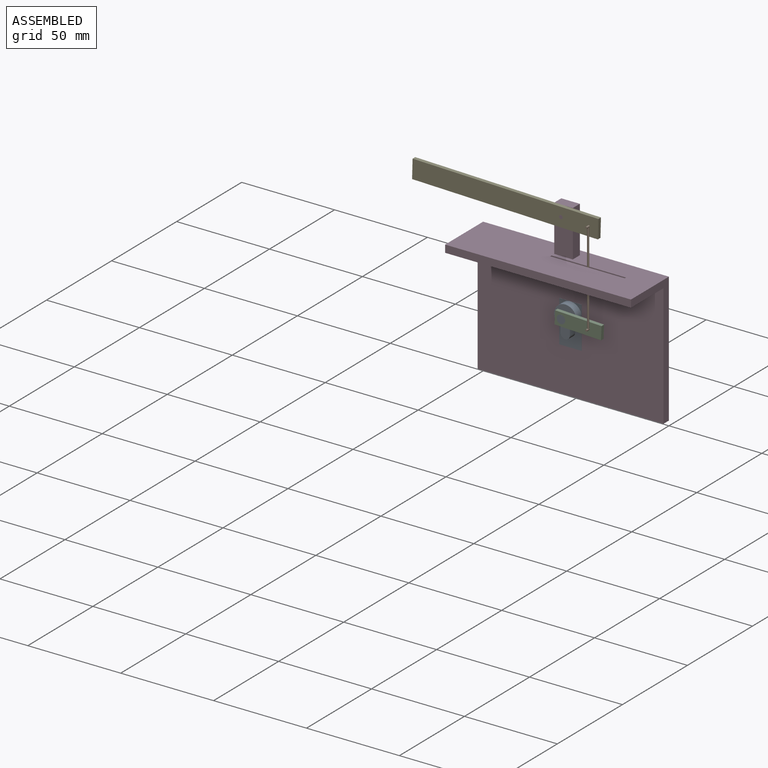
[diagram: assembled view]
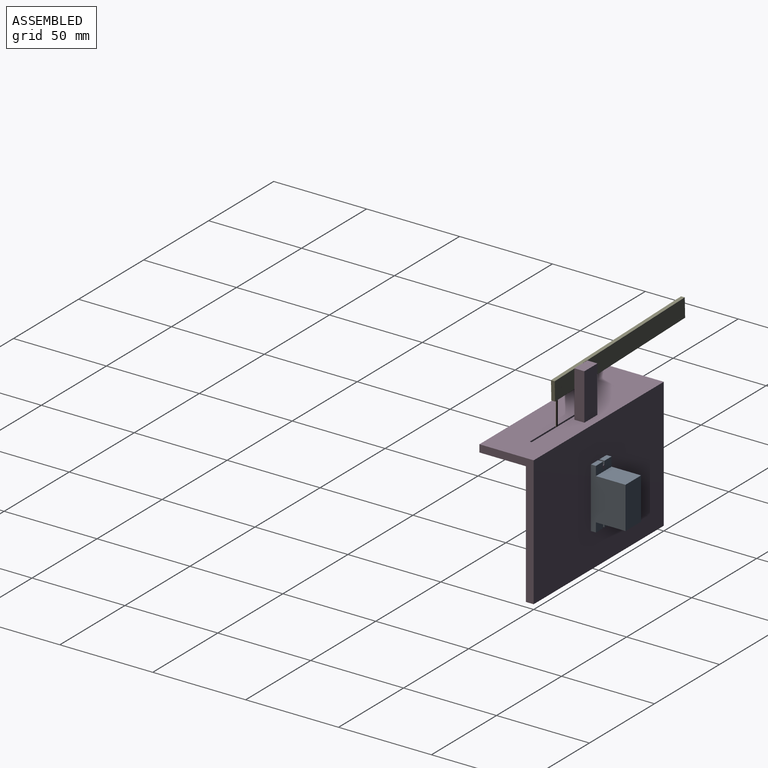
[diagram: assembled view, second angle]
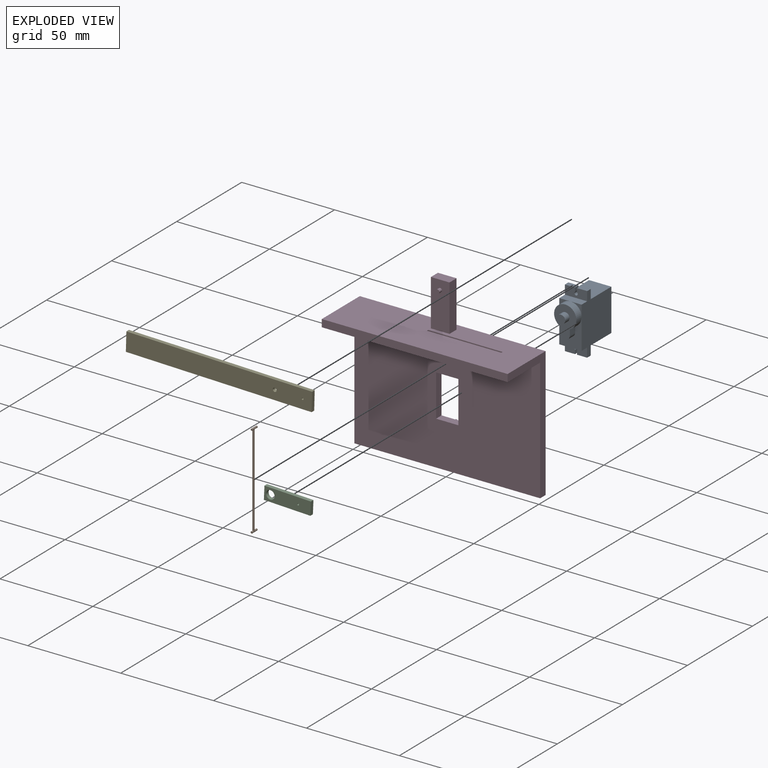
[diagram: exploded view]
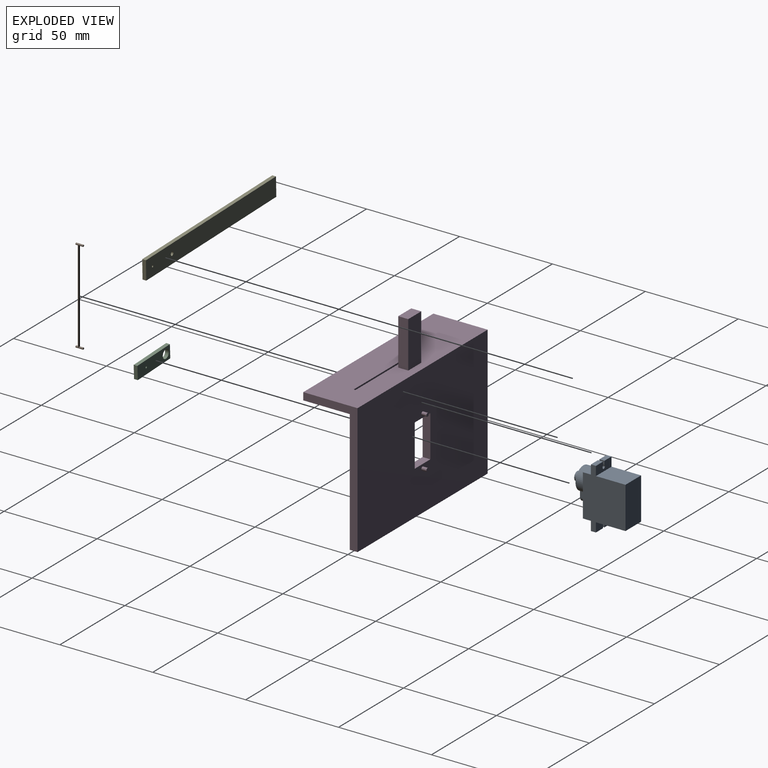
[diagram: exploded view, second angle]
ASSEMBLY  parts=5 mates=5
PART A: 31 faces, bbox 12x30.2x32.4 mm
  f0: plane 16.5x12mm, normal (0,-1,0), area 118.2mm2, adj f8,f9,f10,f24,f25,f26,f27
  f1: plane 6x6mm, normal (0,-1,0), area 7.7mm2, adj f10,f11,f25
  f2: plane 5.45x2.7mm, normal (0,0,-1), area 14.7mm2, adj f3,f4,f10,f23
  f3: plane 12x4.95mm, normal (0,1,0), area 54.7mm2, adj f2,f6,f8,f10,f17,f21,f22,f23
  f4: plane 12x4.95mm, normal (0,-1,0), area 54.7mm2, adj f2,f8,f9,f10,f17,f21,f22,f23
  f5: plane 5.45x2.7mm, normal (0,0,1), area 14.7mm2, adj f10,f15,f16,f18
  f6: plane 15.9x12mm, normal (0,0,-1), area 190.8mm2, adj f3,f8,f10,f12
  f7: plane 15.9x12mm, normal (0,0,1), area 190.8mm2, adj f8,f10,f12,f16
  f8: plane 32.4x22.9mm, normal (-1,0,0), area 542mm2, adj f0,f3,f4,f6,f7,f9,f11,f12
  f9: plane 12x4.3mm, normal (0,0,-1), area 51.6mm2, adj f0,f4,f8,f10
  f10: plane 32.4x22.9mm, normal (1,0,0), area 542mm2, adj f0,f1,f2,f3,f4,f5,f6,f7
  f11: plane 12x4.3mm, normal (0,0,1), area 51.6mm2, adj f1,f8,f10,f13,f15
  f12: plane 22.5x12mm, normal (0,1,0), area 270mm2, adj f6,f7,f8,f10
  f13: plane 6x6mm, normal (0,-1,0), area 7.7mm2, adj f8,f11,f25
  f14: plane 5.45x2.7mm, normal (0,0,1), area 14.7mm2, adj f8,f15,f16,f20
  f15: plane 12x4.95mm, normal (0,-1,0), area 54.7mm2, adj f5,f8,f10,f11,f14,f18,f19,f20
  f16: plane 12x4.95mm, normal (0,1,0), area 54.7mm2, adj f5,f7,f8,f10,f14,f18,f19,f20
  f17: plane 5.45x2.7mm, normal (0,0,-1), area 14.7mm2, adj f3,f4,f8,f21
  f18: plane 2.7x2.09mm, normal (-1,0,0), area 5.6mm2, adj f5,f15,f16,f19
  f19: cylinder r=0.9mm len=2.7mm, axis (0,-1,0), area 12.1mm2, adj f15,f16,f18,f20
  f20: plane 2.7x2.09mm, normal (1,0,0), area 5.6mm2, adj f14,f15,f16,f19
  f21: plane 2.7x2.09mm, normal (1,0,0), area 5.6mm2, adj f3,f4,f17,f22
  f22: cylinder r=0.9mm len=2.7mm, axis (0,-1,0), area 12.1mm2, adj f3,f4,f21,f23
  f23: plane 2.7x2.09mm, normal (-1,0,0), area 5.6mm2, adj f2,f3,f4,f22
  f24: plane 4x3.05mm, normal (1,0,0), area 12.2mm2, adj f0,f25,f27,f28
  f25: cylinder r=6mm len=12mm, axis (0,1,0), area 130.2mm2, adj f0,f1,f13,f24,f26,f28
  f26: plane 4x3.05mm, normal (-1,0,0), area 12.2mm2, adj f0,f25,f27,f28
  f27: cylinder r=2.5mm len=5mm, axis (0,1,0), area 31.4mm2, adj f0,f24,f26,f28
  f28: plane 17x12mm, normal (0,-1,0), area 119.7mm2, adj f24,f25,f26,f27,f29
  f29: cylinder r=2.3mm len=4.6mm, axis (0,1,0), area 47.7mm2, adj f28,f30
  f30: plane 4.6x4.6mm, normal (0,-1,0), area 16.6mm2, adj f29
PART B: 7 faces, bbox 1x51x4 mm
  f0: cylinder r=0.5mm len=4mm, axis (0,0,1), area 11.6mm2, adj f1,f2,f6
  f1: plane 1x1mm, normal (0,0,-1), area 0.8mm2, adj f0
  f2: plane 1x1mm, normal (0,0,1), area 0.8mm2, adj f0
  f3: cylinder r=0.5mm len=4mm, axis (0,0,1), area 11.6mm2, adj f4,f5,f6
  f4: plane 1x1mm, normal (0,0,-1), area 0.8mm2, adj f3
  f5: plane 1x1mm, normal (0,0,1), area 0.8mm2, adj f3
  f6: cylinder r=0.5mm len=50mm, axis (0,1,0), area 155.1mm2, adj f0,f3
PART C: 8 faces, bbox 7x25x2 mm
  f0: plane 25x2mm, normal (-1,0,0), area 50mm2, adj f1,f4,f6,f7
  f1: plane 7x2mm, normal (0,-1,0), area 14mm2, adj f0,f2,f6,f7
  f2: plane 25x2mm, normal (1,0,0), area 50mm2, adj f1,f4,f6,f7
  f3: cylinder r=2.3mm len=4.6mm, axis (0,0,-1), area 28.9mm2, adj f6,f7
  f4: plane 7x2mm, normal (0,1,0), area 14mm2, adj f0,f2,f6,f7
  f5: cylinder r=0.5mm len=2mm, axis (0,0,-1), area 6.3mm2, adj f6,f7
  f6: plane 25x7mm, normal (0,0,1), area 157.6mm2, adj f0,f1,f2,f3,f4,f5
  f7: plane 25x7mm, normal (0,0,-1), area 157.6mm2, adj f0,f1,f2,f3,f4,f5
PART D: 27 faces, bbox 100x31.9x95 mm
  f0: plane 100x29.2mm, normal (0,0,1), area 2826mm2, adj f6,f8,f10,f15,f16,f17,f18,f19
  f1: plane 100x25mm, normal (0,0,-1), area 2460mm2, adj f2,f6,f8,f15,f23,f24,f25,f26
  f2: plane 100x66mm, normal (0,-1,0), area 6330mm2, adj f1,f3,f4,f5,f6,f7,f8,f9
  f3: plane 12x4.2mm, normal (0,0,1), area 50.4mm2, adj f2,f4,f9,f10
  f4: plane 22.5x4.2mm, normal (1,0,0), area 94.5mm2, adj f2,f3,f5,f10
  f5: plane 12x4.2mm, normal (0,0,-1), area 50.4mm2, adj f2,f4,f9,f10
  f6: plane 70x29.2mm, normal (-1,0,0), area 394mm2, adj f0,f1,f2,f7,f10,f15
  f7: plane 100x4.2mm, normal (0,0,-1), area 420mm2, adj f2,f6,f8,f10
  f8: plane 70x29.2mm, normal (1,0,0), area 394mm2, adj f0,f1,f2,f7,f10,f15
  f9: plane 22.5x4.2mm, normal (-1,0,0), area 94.5mm2, adj f2,f3,f5,f10
  f10: plane 100x70mm, normal (0,1,0), area 6724.9mm2, adj f0,f3,f4,f5,f6,f7,f8,f9
  f11: cylinder r=0.9mm len=2.7mm, axis (0,-1,0), area 15.3mm2, adj f10,f12
  f12: plane 1.8x1.8mm, normal (0,1,0), area 2.5mm2, adj f11
  f13: cylinder r=0.9mm len=2.7mm, axis (0,-1,0), area 15.3mm2, adj f10,f14
  f14: plane 1.8x1.8mm, normal (0,1,0), area 2.5mm2, adj f13
  f15: plane 100x4mm, normal (0,-1,0), area 400mm2, adj f0,f1,f6,f8
  f16: plane 25x5.4mm, normal (1,0,0), area 135mm2, adj f0,f17,f19,f20
  f17: plane 25x10mm, normal (0,1,0), area 250mm2, adj f0,f16,f18,f20
  f18: plane 25x5.4mm, normal (-1,0,0), area 135mm2, adj f0,f17,f19,f20
  f19: plane 25x10mm, normal (0,-1,0), area 246.9mm2, adj f0,f16,f18,f20,f21
  f20: plane 10x5.4mm, normal (0,0,1), area 54mm2, adj f16,f17,f18,f19
  f21: cylinder r=1mm len=2mm, axis (0,1,0), area 12.6mm2, adj f19,f22
  f22: plane 2x2mm, normal (0,-1,0), area 3.1mm2, adj f21
  f23: plane 4x1mm, normal (-1,0,0), area 4mm2, adj f0,f1,f24,f26
  f24: plane 40x4mm, normal (0,-1,0), area 160mm2, adj f0,f1,f23,f25
  f25: plane 4x1mm, normal (1,0,0), area 4mm2, adj f0,f1,f24,f26
  f26: plane 40x4mm, normal (0,1,0), area 160mm2, adj f0,f1,f23,f25
PART E: 8 faces, bbox 100x2x10 mm
  f0: plane 100x2mm, normal (0,0,1), area 200mm2, adj f1,f5,f6,f7
  f1: plane 10x2mm, normal (-1,0,0), area 20mm2, adj f0,f2,f6,f7
  f2: plane 100x2mm, normal (0,0,-1), area 200mm2, adj f1,f5,f6,f7
  f3: cylinder r=0.5mm len=2mm, axis (0,1,0), area 6.3mm2, adj f6,f7
  f4: cylinder r=1mm len=2mm, axis (0,1,0), area 12.6mm2, adj f6,f7
  f5: plane 10x2mm, normal (1,0,0), area 20mm2, adj f0,f2,f6,f7
  f6: plane 100x10mm, normal (0,-1,0), area 996.1mm2, adj f0,f1,f2,f3,f4,f5
  f7: plane 100x10mm, normal (0,1,0), area 996.1mm2, adj f0,f1,f2,f3,f4,f5
PLACE A t=(0,-4.3,0)mm
PLACE B rot(axis=(1,0,0),90deg) t=(14.99,-11.6,29.61)mm
PLACE C rot(axis=(0.56,0.59,-0.59),121.4deg) t=(9.19,-9.6,4.86)mm
PLACE D at identity fixed
PLACE E rot(axis=(0,1,0),1.5deg) t=(-42.1,-9.6,61.11)mm
MATE revolute B.f3 <-> E.f3  axis (0,1,0) through (14.99,-9.6,54.61)mm
MATE revolute B.f0 <-> C.f5  axis (0,1,0) through (14.99,-9.6,4.61)mm
MATE revolute E.f4 <-> D.f21  axis (0,-1,0) through (0,-11.6,55)mm
MATE revolute C.f3 <-> A.f29  axis (0,-1,0) through (0,-11.6,5.25)mm
MATE fastened A.f19 <-> D.f13  axis (0,-1,0) through (0,2.7,13.4)mm
